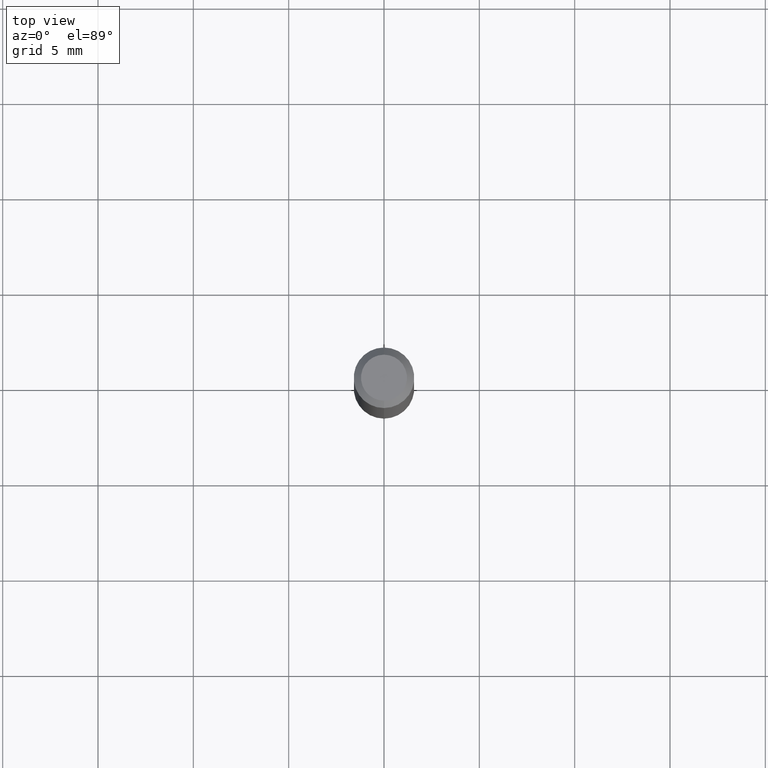
[diagram: clean part render]
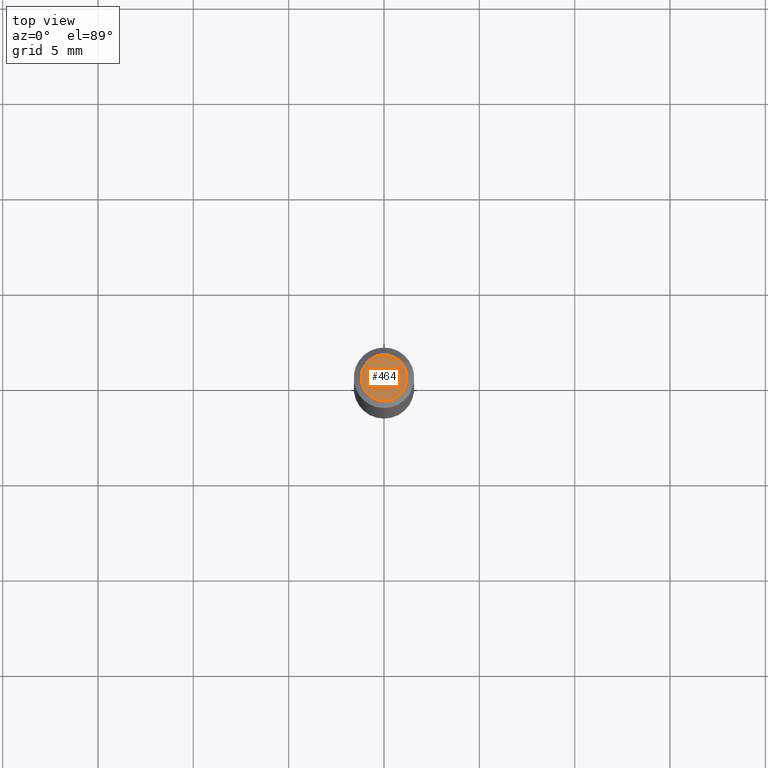
[diagram: same view with one face highlighted and labeled with its STEP entity id]
A machine part, top view. The second image highlights one B-rep face of the part: STEP entity #464.
In plain terms, the highlighted planar face has unit normal (0, -0, -1).
Its self-contained STEP definition (entity closure, byte-faithful):
#27 = CIRCLE ( 'NONE', #334, 0.04749999999999999362 ) ;
#28 = VERTEX_POINT ( 'NONE', #46 ) ;
#41 = DIRECTION ( 'NONE',  ( 6.982962677686265922E-15, 1.000000000000000000, -3.491494319443495582E-15 ) ) ;
#46 = CARTESIAN_POINT ( 'NONE',  ( 3.840629472727447874E-16, 0.04749999999999999362, -1.747056831868805136E-16 ) ) ;
#81 = ORIENTED_EDGE ( 'NONE', *, *, #507, .T. ) ;
#107 = ORIENTED_EDGE ( 'NONE', *, *, #227, .T. ) ;
#146 = DIRECTION ( 'NONE',  ( -2.445459741880358586E-29, 3.491494319443495582E-15, 1.000000000000000000 ) ) ;
#147 = AXIS2_PLACEMENT_3D ( 'NONE', #508, #226, #194 ) ;
#155 = PLANE ( 'NONE',  #463 ) ;
#175 = CARTESIAN_POINT ( 'NONE',  ( 2.166604704407663648E-46, -3.093360274294388668E-32, -8.859703013314469095E-18 ) ) ;
#179 = DIRECTION ( 'NONE',  ( -6.982962677686266711E-15, -1.000000000000000000, 3.491494319443496371E-15 ) ) ;
#194 = DIRECTION ( 'NONE',  ( -6.982962677686266711E-15, -1.000000000000000000, 3.491494319443496371E-15 ) ) ;
#226 = DIRECTION ( 'NONE',  ( -2.445459741880358586E-29, 3.491494319443495582E-15, 1.000000000000000000 ) ) ;
#227 = EDGE_CURVE ( 'NONE', #454, #28, #27, .T. ) ;
#334 = AXIS2_PLACEMENT_3D ( 'NONE', #175, #146, #179 ) ;
#394 = FACE_OUTER_BOUND ( 'NONE', #411, .T. ) ;
#396 = DIRECTION ( 'NONE',  ( 2.445459741880358586E-29, -3.491494319443495582E-15, -1.000000000000000000 ) ) ;
#411 = EDGE_LOOP ( 'NONE', ( #81, #107 ) ) ;
#422 = CIRCLE ( 'NONE', #147, 0.04749999999999999362 ) ;
#426 = CARTESIAN_POINT ( 'NONE',  ( -3.773273898774340269E-16, -0.04749999999999999362, 1.569862771602515785E-16 ) ) ;
#454 = VERTEX_POINT ( 'NONE', #426 ) ;
#463 = AXIS2_PLACEMENT_3D ( 'NONE', #475, #396, #41 ) ;
#464 = ADVANCED_FACE ( 'NONE', ( #394 ), #155, .F. ) ;
#475 = CARTESIAN_POINT ( 'NONE',  ( 3.316907271900976096E-16, 0.04749999999999999362, -1.702758316802232799E-16 ) ) ;
#507 = EDGE_CURVE ( 'NONE', #28, #454, #422, .T. ) ;
#508 = CARTESIAN_POINT ( 'NONE',  ( 2.166604704407663648E-46, -3.093360274294388668E-32, -8.859703013314469095E-18 ) ) ;